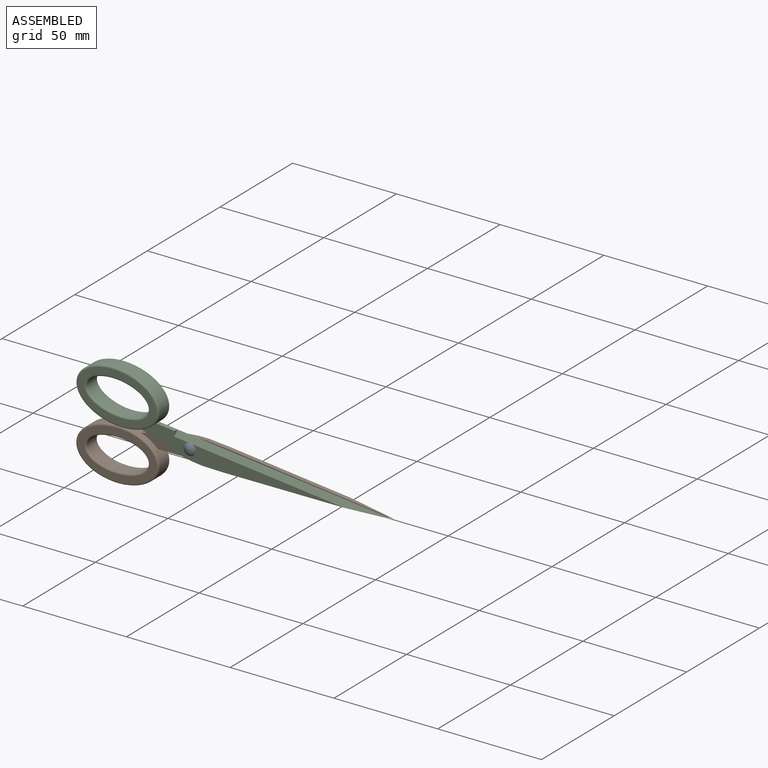
[diagram: assembled view]
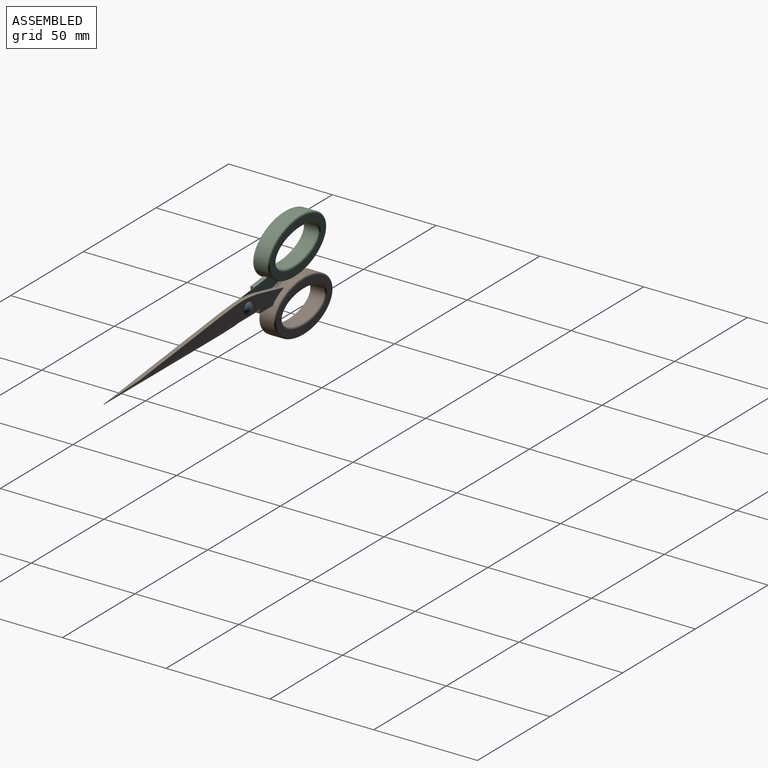
[diagram: assembled view, second angle]
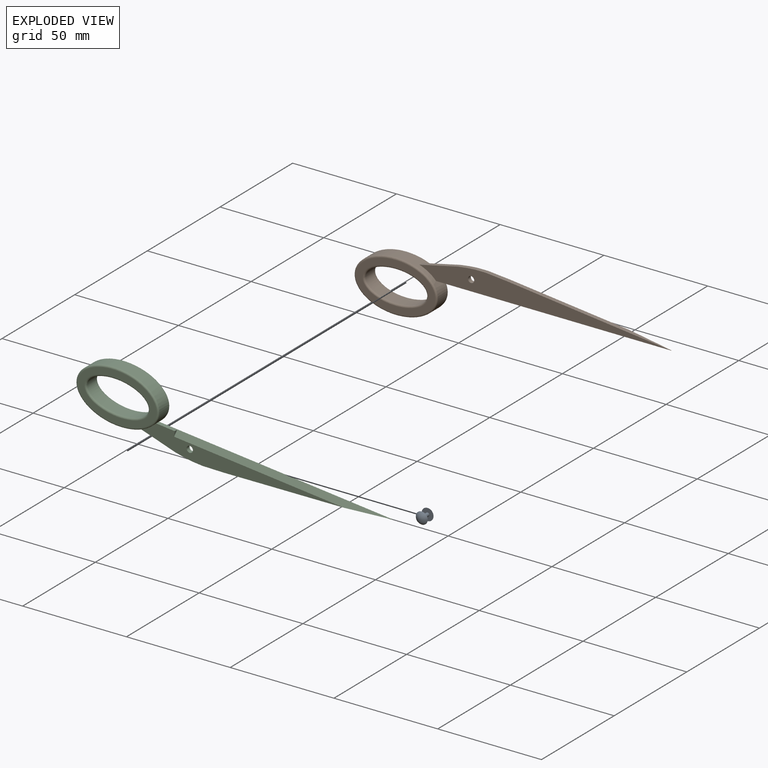
[diagram: exploded view]
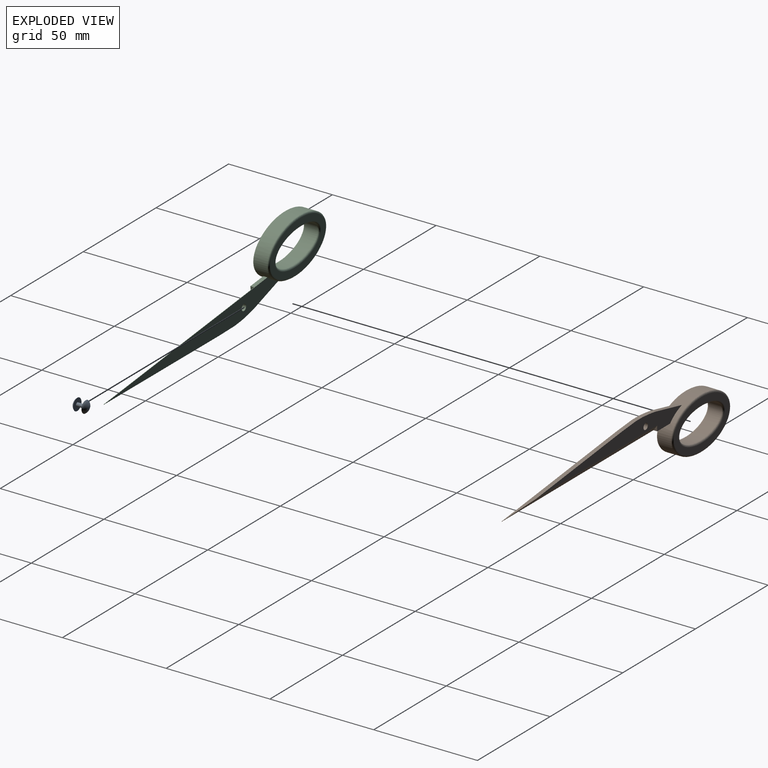
[diagram: exploded view, second angle]
ASSEMBLY  parts=3 mates=2
PART A: 5 faces, bbox 5.7x5.7x7 mm
  f0: sphere r=3.5mm, area 33mm2, adj f1
  f1: plane 5.74x5.74mm, normal (0,0,-1), area 23.5mm2, adj f0,f2
  f2: cylinder r=0.87mm len=4mm, axis (0,0,-1), area 21.9mm2, adj f1,f3
  f3: plane 5.74x5.74mm, normal (0,0,1), area 23.5mm2, adj f2,f4
  f4: sphere r=3.5mm, area 33mm2, adj f3
PART B: 17 faces, bbox 151x8x28.9 mm
  f0: plane 113.44x2mm, normal (0,0,-1), area 38.8mm2, adj f1,f2,f6,f7,f15,f16
  f1: plane 99.53x10.31mm, normal (0,1,0), area 452mm2, adj f0,f2,f3,f4,f5,f7,f15,f16
  f2: plane 79.49x9.06mm, normal (0.11,0,0.99), area 140.1mm2, adj f0,f1,f3,f6,f16
  f3: extruded ~23.56x2mm, area 47.3mm2, adj f1,f2,f4,f6
  f4: plane 18.43x4.08mm, normal (-0.22,0,0.98), area 37.8mm2, adj f1,f3,f6,f7
  f5: cylinder r=1.5mm len=3mm, axis (0,1,0), area 18.8mm2, adj f1,f6
  f6: plane 121.47x10.31mm, normal (0,-1,0), area 685.8mm2, adj f0,f2,f3,f4,f5,f7
  f7: extruded ~40x25mm, area 643.1mm2, adj f0,f1,f4,f6,f12,f14
  f8: extruded ~29.96x14.98mm, area 465.1mm2, adj f11,f13
  f9: plane 38.41x23.41mm, normal (0,-1,0), area 289.3mm2, adj f13,f14
  f10: plane 38.41x23.41mm, normal (0,1,0), area 289.3mm2, adj f11,f12
  f11: bspline ~31.61x16.61mm, area 93.7mm2, adj f8,f10
  f12: bspline ~40.02x25.02mm, area 127.7mm2, adj f7,f10
  f13: bspline ~31.61x16.61mm, area 93.7mm2, adj f8,f9
  f14: bspline ~40.02x25.02mm, area 127.7mm2, adj f7,f9
  f15: plane 2.5x1.8mm, normal (1,0,0), area 2.3mm2, adj f0,f1,f16
  f16: plane 104.49x2.5mm, normal (0,0.81,-0.58), area 288.1mm2, adj f0,f1,f2,f15
PART C: 17 faces, bbox 151x8x28.9 mm
  f0: plane 79.49x9.06mm, normal (0.11,0,-0.99), area 140.1mm2, adj f1,f4,f5,f6,f11
  f1: plane 113.44x2mm, normal (0,0,1), area 38.8mm2, adj f0,f5,f6,f8,f11,f12
  f2: plane 18.43x4.08mm, normal (-0.22,0,-0.98), area 37.8mm2, adj f4,f5,f6,f8
  f3: cylinder r=1.5mm len=3mm, axis (0,1,0), area 18.8mm2, adj f5,f6
  f4: extruded ~23.56x2mm, area 47.3mm2, adj f0,f2,f5,f6
  f5: plane 99.53x10.31mm, normal (0,-1,0), area 452mm2, adj f0,f1,f2,f3,f4,f8,f11,f12
  f6: plane 121.47x10.31mm, normal (0,1,0), area 685.8mm2, adj f0,f1,f2,f3,f4,f8
  f7: extruded ~29.96x14.98mm, area 465.1mm2, adj f13,f15
  f8: extruded ~40x25mm, area 643.1mm2, adj f1,f2,f5,f6,f14,f16
  f9: plane 38.41x23.41mm, normal (0,-1,0), area 289.3mm2, adj f15,f16
  f10: plane 38.41x23.41mm, normal (0,1,0), area 289.3mm2, adj f13,f14
  f11: plane 104.49x2.5mm, normal (0,-0.81,0.58), area 288.1mm2, adj f0,f1,f5,f12
  f12: plane 2.5x1.8mm, normal (1,0,0), area 2.2mm2, adj f1,f5,f11
  f13: bspline ~31.61x16.61mm, area 93.7mm2, adj f7,f10
  f14: bspline ~40.02x25.02mm, area 127.7mm2, adj f8,f10
  f15: bspline ~31.61x16.61mm, area 93.7mm2, adj f7,f9
  f16: bspline ~40.02x25.02mm, area 127.7mm2, adj f8,f9
PLACE A rot(axis=(1,0,0),90deg) t=(-0.44,-38.1,-28.93)mm fixed
PLACE B t=(19.25,14.94,-127.82)mm
PLACE C rot(axis=(0,1,0),6.3deg) t=(15.79,12.94,-61.14)mm
MATE revolute A.f2 <-> B.f5  axis (0,1,0) through (2.15,15.94,-28.93)mm
MATE revolute A.f2 <-> C.f3  axis (0,1,0) through (2.15,11.94,-28.93)mm
